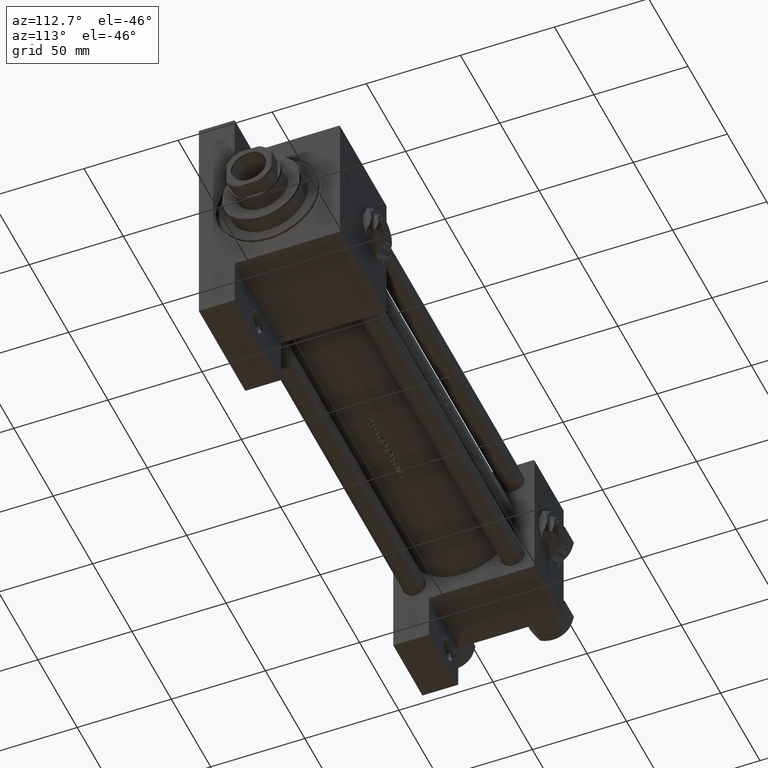
[diagram: clean part render]
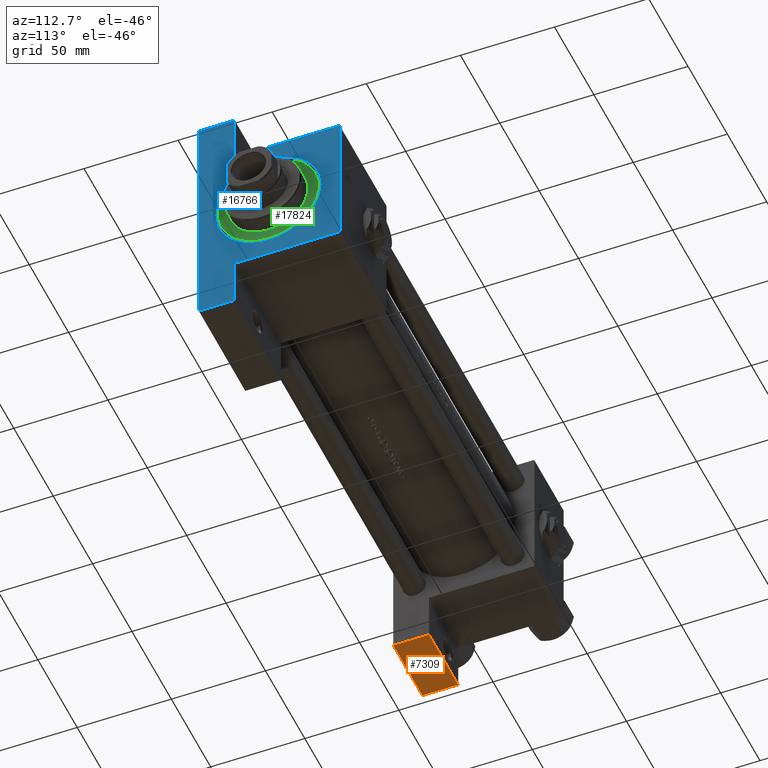
[diagram: same view with three faces highlighted in distinct colors, each labeled with its STEP entity id]
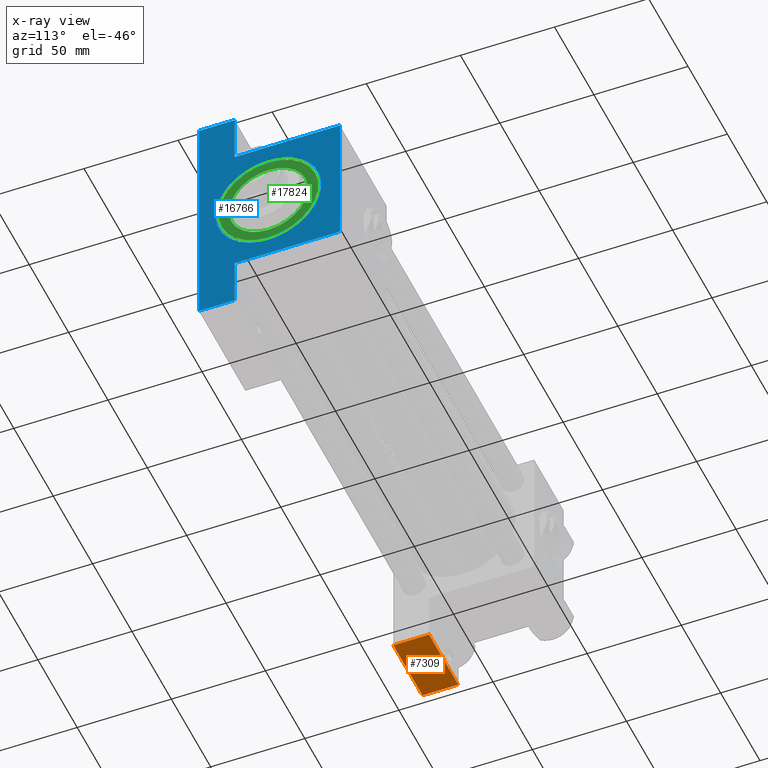
[diagram: x-ray of the same camera — body ghosted, the three highlighted faces saturated]
A machine part, auxiliary view with three faces highlighted in distinct colors.
The next image is the same camera in x-ray (body ghosted, the three faces saturated) — at least one of them is partly hidden behind the body in this view.
Their STEP definitions:

[orange] entity #7309 — the highlighted planar face has unit normal (0, -0, -1).
#1866 = VERTEX_POINT ( 'NONE', #25243 ) ;
#3209 = DIRECTION ( 'NONE',  ( 0.000000000000000000, -1.734723475976806848E-16, -1.000000000000000000 ) ) ;
#3335 = ORIENTED_EDGE ( 'NONE', *, *, #43545, .T. ) ;
#3960 = CARTESIAN_POINT ( 'NONE',  ( 1.595073532467135441E-14, 63.50000000000000000, -18.50000000000000355 ) ) ;
#4252 = CARTESIAN_POINT ( 'NONE',  ( 1.595073532467135441E-14, 63.50000000000000000, -37.50000000000002132 ) ) ;
#5351 = ORIENTED_EDGE ( 'NONE', *, *, #28706, .F. ) ;
#5475 = CARTESIAN_POINT ( 'NONE',  ( 37.00000000000001421, 63.50000000000001421, 26.72167621838005047 ) ) ;
#6617 = CARTESIAN_POINT ( 'NONE',  ( 1.595073532467135441E-14, 63.50000000000000000, -18.50000000000000355 ) ) ;
#7309 = ADVANCED_FACE ( 'NONE', ( #17788 ), #44562, .T. ) ;
#8362 = ORIENTED_EDGE ( 'NONE', *, *, #14600, .F. ) ;
#9433 = DIRECTION ( 'NONE',  ( 1.000000000000000000, 0.000000000000000000, 0.000000000000000000 ) ) ;
#10912 = VECTOR ( 'NONE', #42239, 1000.000000000000000 ) ;
#13402 = CARTESIAN_POINT ( 'NONE',  ( 1.595073532467135441E-14, 63.50000000000000000, -37.50000000000002132 ) ) ;
#13833 = DIRECTION ( 'NONE',  ( 0.000000000000000000, 1.000000000000000000, -1.734723475976806848E-16 ) ) ;
#14318 = CARTESIAN_POINT ( 'NONE',  ( 1.595073532467135441E-14, 63.50000000000001421, 26.72167621838005047 ) ) ;
#14600 = EDGE_CURVE ( 'NONE', #25459, #35148, #31992, .T. ) ;
#15932 = VECTOR ( 'NONE', #9433, 1000.000000000000000 ) ;
#16339 = EDGE_CURVE ( 'NONE', #1866, #32458, #29410, .T. ) ;
#17113 = LINE ( 'NONE', #5475, #10912 ) ;
#17788 = FACE_OUTER_BOUND ( 'NONE', #30743, .T. ) ;
#21273 = CARTESIAN_POINT ( 'NONE',  ( 37.00000000000001421, 63.50000000000000000, -37.50000000000002132 ) ) ;
#25243 = CARTESIAN_POINT ( 'NONE',  ( 37.00000000000001421, 63.50000000000000000, -18.50000000000000355 ) ) ;
#25458 = ORIENTED_EDGE ( 'NONE', *, *, #16339, .F. ) ;
#25459 = VERTEX_POINT ( 'NONE', #4252 ) ;
#28706 = EDGE_CURVE ( 'NONE', #32458, #25459, #36911, .T. ) ;
#29410 = LINE ( 'NONE', #6617, #42909 ) ;
#30743 = EDGE_LOOP ( 'NONE', ( #25458, #3335, #8362, #5351 ) ) ;
#31992 = LINE ( 'NONE', #13402, #15932 ) ;
#32421 = DIRECTION ( 'NONE',  ( 0.000000000000000000, 1.734723475976806848E-16, 1.000000000000000000 ) ) ;
#32458 = VERTEX_POINT ( 'NONE', #3960 ) ;
#35148 = VERTEX_POINT ( 'NONE', #21273 ) ;
#36911 = LINE ( 'NONE', #48324, #48536 ) ;
#41913 = AXIS2_PLACEMENT_3D ( 'NONE', #14318, #13833, #32421 ) ;
#42239 = DIRECTION ( 'NONE',  ( 0.000000000000000000, -1.734723475976806848E-16, -1.000000000000000000 ) ) ;
#42909 = VECTOR ( 'NONE', #47275, 1000.000000000000000 ) ;
#43545 = EDGE_CURVE ( 'NONE', #1866, #35148, #17113, .T. ) ;
#44562 = PLANE ( 'NONE',  #41913 ) ;
#47275 = DIRECTION ( 'NONE',  ( -1.000000000000000000, 0.000000000000000000, 0.000000000000000000 ) ) ;
#48324 = CARTESIAN_POINT ( 'NONE',  ( 1.595073532467135441E-14, 63.50000000000001421, 26.72167621838005047 ) ) ;
#48536 = VECTOR ( 'NONE', #3209, 1000.000000000000000 ) ;

[blue] entity #16766 — the highlighted planar face has unit normal (-1, 0, 0).
#437 = DIRECTION ( 'NONE',  ( 0.000000000000000000, 0.000000000000000000, -1.000000000000000000 ) ) ;
#480 = DIRECTION ( 'NONE',  ( -0.000000000000000000, -1.000000000000000000, -0.000000000000000000 ) ) ;
#1009 = DIRECTION ( 'NONE',  ( -1.000000000000000000, -0.000000000000000000, 0.000000000000000000 ) ) ;
#2218 = VECTOR ( 'NONE', #37906, 1000.000000000000000 ) ;
#2377 = AXIS2_PLACEMENT_3D ( 'NONE', #40691, #29782, #11444 ) ;
#2472 = EDGE_LOOP ( 'NONE', ( #22826, #24529, #17838, #12857, #4849, #17784, #31611, #46804, #31070, #38376 ) ) ;
#2506 = DIRECTION ( 'NONE',  ( 0.000000000000000000, -1.000000000000000000, 0.000000000000000000 ) ) ;
#2511 = CARTESIAN_POINT ( 'NONE',  ( 284.0000000000000568, -63.50000000000002842, -18.50000000000000000 ) ) ;
#2639 = CARTESIAN_POINT ( 'NONE',  ( 284.0000000000000568, 37.50000000000000000, 37.49999999999999289 ) ) ;
#2974 = LINE ( 'NONE', #32723, #19233 ) ;
#3221 = VERTEX_POINT ( 'NONE', #24892 ) ;
#3422 = CARTESIAN_POINT ( 'NONE',  ( 284.0000000000000568, 3.429011037612595587E-15, 27.50000000000005329 ) ) ;
#3988 = FACE_OUTER_BOUND ( 'NONE', #2472, .T. ) ;
#4131 = AXIS2_PLACEMENT_3D ( 'NONE', #27257, #1009, #38426 ) ;
#4849 = ORIENTED_EDGE ( 'NONE', *, *, #43751, .T. ) ;
#5851 = DIRECTION ( 'NONE',  ( 0.000000000000000000, 0.000000000000000000, -1.000000000000000000 ) ) ;
#6338 = CIRCLE ( 'NONE', #2377, 28.00000000000005329 ) ;
#6590 = EDGE_CURVE ( 'NONE', #9313, #37213, #6338, .T. ) ;
#7234 = EDGE_CURVE ( 'NONE', #29200, #32416, #19066, .T. ) ;
#7732 = VECTOR ( 'NONE', #2506, 1000.000000000000000 ) ;
#8560 = EDGE_CURVE ( 'NONE', #46795, #27736, #39801, .T. ) ;
#8974 = EDGE_CURVE ( 'NONE', #20077, #14722, #20672, .T. ) ;
#9313 = VERTEX_POINT ( 'NONE', #3422 ) ;
#9671 = VERTEX_POINT ( 'NONE', #22679 ) ;
#10758 = LINE ( 'NONE', #25630, #14493 ) ;
#11444 = DIRECTION ( 'NONE',  ( 0.000000000000000000, 0.000000000000000000, 1.000000000000000000 ) ) ;
#11840 = CARTESIAN_POINT ( 'NONE',  ( 284.0000000000000568, -63.50000000000002842, -18.50000000000000000 ) ) ;
#12165 = FACE_BOUND ( 'NONE', #23489, .T. ) ;
#12857 = ORIENTED_EDGE ( 'NONE', *, *, #8974, .T. ) ;
#13324 = EDGE_CURVE ( 'NONE', #9671, #38784, #43997, .T. ) ;
#14493 = VECTOR ( 'NONE', #40500, 1000.000000000000114 ) ;
#14722 = VERTEX_POINT ( 'NONE', #15340 ) ;
#14723 = VERTEX_POINT ( 'NONE', #41618 ) ;
#15297 = CARTESIAN_POINT ( 'NONE',  ( 284.0000000000000568, 37.50000000000000000, -37.50000000000000000 ) ) ;
#15340 = CARTESIAN_POINT ( 'NONE',  ( 284.0000000000000568, -37.50000000000000000, 36.99999999999995026 ) ) ;
#16766 = ADVANCED_FACE ( 'NONE', ( #12165, #3988 ), #42390, .F. ) ;
#17784 = ORIENTED_EDGE ( 'NONE', *, *, #7234, .T. ) ;
#17838 = ORIENTED_EDGE ( 'NONE', *, *, #18908, .T. ) ;
#18908 = EDGE_CURVE ( 'NONE', #14723, #20077, #2974, .T. ) ;
#19066 = LINE ( 'NONE', #34191, #34029 ) ;
#19233 = VECTOR ( 'NONE', #48807, 1000.000000000000000 ) ;
#19798 = VECTOR ( 'NONE', #5851, 1000.000000000000000 ) ;
#19947 = CARTESIAN_POINT ( 'NONE',  ( 284.0000000000000568, 0.000000000000000000, -28.50000000000005329 ) ) ;
#20077 = VERTEX_POINT ( 'NONE', #34854 ) ;
#20104 = EDGE_CURVE ( 'NONE', #37213, #9313, #35857, .T. ) ;
#20672 = LINE ( 'NONE', #32067, #45956 ) ;
#20828 = AXIS2_PLACEMENT_3D ( 'NONE', #37841, #33886, #34607 ) ;
#22679 = CARTESIAN_POINT ( 'NONE',  ( 284.0000000000000568, 63.49999999999997158, -18.50000000000000000 ) ) ;
#22786 = CARTESIAN_POINT ( 'NONE',  ( 284.0000000000000568, -37.50000000000000000, 37.49999999999997868 ) ) ;
#22826 = ORIENTED_EDGE ( 'NONE', *, *, #8560, .F. ) ;
#23489 = EDGE_LOOP ( 'NONE', ( #26970, #39774 ) ) ;
#23708 = DIRECTION ( 'NONE',  ( 0.000000000000000000, -1.000000000000000000, 0.000000000000000000 ) ) ;
#24529 = ORIENTED_EDGE ( 'NONE', *, *, #29279, .T. ) ;
#24892 = CARTESIAN_POINT ( 'NONE',  ( 284.0000000000000568, -63.50000000000002842, -37.50000000000000000 ) ) ;
#25521 = CARTESIAN_POINT ( 'NONE',  ( 284.0000000000000568, 63.49999999999997158, -37.50000000000000000 ) ) ;
#25630 = CARTESIAN_POINT ( 'NONE',  ( 284.0000000000000568, 36.99999999999994316, 37.49999999999999289 ) ) ;
#26970 = ORIENTED_EDGE ( 'NONE', *, *, #20104, .T. ) ;
#27257 = CARTESIAN_POINT ( 'NONE',  ( 284.0000000000000568, 0.000000000000000000, 0.000000000000000000 ) ) ;
#27736 = VERTEX_POINT ( 'NONE', #31479 ) ;
#29200 = VERTEX_POINT ( 'NONE', #37250 ) ;
#29279 = EDGE_CURVE ( 'NONE', #46795, #14723, #10758, .T. ) ;
#29782 = DIRECTION ( 'NONE',  ( -1.000000000000000000, -0.000000000000000000, 0.000000000000000000 ) ) ;
#30228 = LINE ( 'NONE', #22786, #2218 ) ;
#31070 = ORIENTED_EDGE ( 'NONE', *, *, #13324, .F. ) ;
#31479 = CARTESIAN_POINT ( 'NONE',  ( 284.0000000000000568, 37.49999999999995026, -18.50000000000000000 ) ) ;
#31611 = ORIENTED_EDGE ( 'NONE', *, *, #48080, .T. ) ;
#32067 = CARTESIAN_POINT ( 'NONE',  ( 284.0000000000000568, -37.50000000000000000, 36.99999999999995026 ) ) ;
#32416 = VERTEX_POINT ( 'NONE', #2511 ) ;
#32459 = VECTOR ( 'NONE', #23708, 1000.000000000000000 ) ;
#32723 = CARTESIAN_POINT ( 'NONE',  ( 284.0000000000000568, 37.50000000000000000, 37.49999999999999289 ) ) ;
#33571 = DIRECTION ( 'NONE',  ( 0.000000000000000000, 0.000000000000000000, -1.000000000000000000 ) ) ;
#33886 = DIRECTION ( 'NONE',  ( -1.000000000000000000, -0.000000000000000000, 0.000000000000000000 ) ) ;
#34029 = VECTOR ( 'NONE', #480, 1000.000000000000000 ) ;
#34191 = CARTESIAN_POINT ( 'NONE',  ( 284.0000000000000568, -63.50000000000002842, -18.50000000000000000 ) ) ;
#34607 = DIRECTION ( 'NONE',  ( 0.000000000000000000, 0.000000000000000000, 1.000000000000000000 ) ) ;
#34854 = CARTESIAN_POINT ( 'NONE',  ( 284.0000000000000568, -36.99999999999997158, 37.49999999999997868 ) ) ;
#35857 = CIRCLE ( 'NONE', #20828, 28.00000000000005329 ) ;
#36028 = DIRECTION ( 'NONE',  ( -0.000000000000000000, -0.7071067811865474617, -0.7071067811865474617 ) ) ;
#36446 = CARTESIAN_POINT ( 'NONE',  ( 284.0000000000000568, 63.49999999999997158, -18.50000000000000000 ) ) ;
#37213 = VERTEX_POINT ( 'NONE', #19947 ) ;
#37250 = CARTESIAN_POINT ( 'NONE',  ( 284.0000000000000568, -37.50000000000000711, -18.50000000000000355 ) ) ;
#37841 = CARTESIAN_POINT ( 'NONE',  ( 284.0000000000000568, 0.000000000000000000, -0.5000000000000004441 ) ) ;
#37906 = DIRECTION ( 'NONE',  ( 0.000000000000000000, -9.251858538542972814E-17, -1.000000000000000000 ) ) ;
#38376 = ORIENTED_EDGE ( 'NONE', *, *, #43654, .T. ) ;
#38426 = DIRECTION ( 'NONE',  ( 0.000000000000000000, 0.000000000000000000, 1.000000000000000000 ) ) ;
#38588 = LINE ( 'NONE', #11840, #45902 ) ;
#38784 = VERTEX_POINT ( 'NONE', #25521 ) ;
#39774 = ORIENTED_EDGE ( 'NONE', *, *, #6590, .T. ) ;
#39801 = LINE ( 'NONE', #2639, #19798 ) ;
#40500 = DIRECTION ( 'NONE',  ( 0.000000000000000000, -0.7071067811865474617, 0.7071067811865474617 ) ) ;
#40648 = LINE ( 'NONE', #36446, #7732 ) ;
#40691 = CARTESIAN_POINT ( 'NONE',  ( 284.0000000000000568, 0.000000000000000000, -0.5000000000000004441 ) ) ;
#41618 = CARTESIAN_POINT ( 'NONE',  ( 284.0000000000000568, 36.99999999999994316, 37.49999999999999289 ) ) ;
#42390 = PLANE ( 'NONE',  #4131 ) ;
#42557 = LINE ( 'NONE', #15297, #32459 ) ;
#43654 = EDGE_CURVE ( 'NONE', #9671, #27736, #40648, .T. ) ;
#43751 = EDGE_CURVE ( 'NONE', #14722, #29200, #30228, .T. ) ;
#43997 = LINE ( 'NONE', #48450, #46739 ) ;
#45902 = VECTOR ( 'NONE', #437, 1000.000000000000000 ) ;
#45956 = VECTOR ( 'NONE', #36028, 1000.000000000000114 ) ;
#46634 = CARTESIAN_POINT ( 'NONE',  ( 284.0000000000000568, 37.50000000000000000, 36.99999999999993605 ) ) ;
#46739 = VECTOR ( 'NONE', #33571, 1000.000000000000000 ) ;
#46795 = VERTEX_POINT ( 'NONE', #46634 ) ;
#46804 = ORIENTED_EDGE ( 'NONE', *, *, #48145, .F. ) ;
#48080 = EDGE_CURVE ( 'NONE', #32416, #3221, #38588, .T. ) ;
#48145 = EDGE_CURVE ( 'NONE', #38784, #3221, #42557, .T. ) ;
#48450 = CARTESIAN_POINT ( 'NONE',  ( 284.0000000000000568, 63.49999999999997158, -18.50000000000000000 ) ) ;
#48807 = DIRECTION ( 'NONE',  ( 0.000000000000000000, -1.000000000000000000, -1.850371707708594316E-16 ) ) ;

[green] entity #17824 — the highlighted planar face has unit normal (1, 0, 0).
#2008 = DIRECTION ( 'NONE',  ( 0.000000000000000000, 0.000000000000000000, 1.000000000000000000 ) ) ;
#2418 = CARTESIAN_POINT ( 'NONE',  ( -26.50000000000000355, 0.000000000000000000, 28.69999999999999929 ) ) ;
#2446 = DIRECTION ( 'NONE',  ( 1.000000000000000000, 0.000000000000000000, 0.000000000000000000 ) ) ;
#7247 = AXIS2_PLACEMENT_3D ( 'NONE', #16873, #2008, #46872 ) ;
#8627 = DIRECTION ( 'NONE',  ( 0.000000000000000000, 0.000000000000000000, 1.000000000000000000 ) ) ;
#8946 = CARTESIAN_POINT ( 'NONE',  ( -21.00000000000000000, 0.000000000000000000, 28.69999999999999929 ) ) ;
#10083 = ORIENTED_EDGE ( 'NONE', *, *, #14579, .F. ) ;
#11571 = VERTEX_POINT ( 'NONE', #2418 ) ;
#13581 = EDGE_LOOP ( 'NONE', ( #10083, #33190 ) ) ;
#13998 = VERTEX_POINT ( 'NONE', #41374 ) ;
#14336 = DIRECTION ( 'NONE',  ( 1.000000000000000000, 0.000000000000000000, 0.000000000000000000 ) ) ;
#14410 = DIRECTION ( 'NONE',  ( 0.000000000000000000, 0.000000000000000000, 1.000000000000000000 ) ) ;
#14579 = EDGE_CURVE ( 'NONE', #31756, #21903, #30200, .T. ) ;
#15643 = CIRCLE ( 'NONE', #19609, 26.50000000000000355 ) ;
#16873 = CARTESIAN_POINT ( 'NONE',  ( 0.000000000000000000, 0.000000000000000000, 28.69999999999999929 ) ) ;
#17552 = CARTESIAN_POINT ( 'NONE',  ( 0.000000000000000000, 0.000000000000000000, 28.69999999999999929 ) ) ;
#17824 = ADVANCED_FACE ( 'NONE', ( #29533, #32766 ), #29771, .T. ) ;
#18612 = DIRECTION ( 'NONE',  ( 1.000000000000000000, 0.000000000000000000, -0.000000000000000000 ) ) ;
#19029 = EDGE_CURVE ( 'NONE', #21903, #31756, #48502, .T. ) ;
#19609 = AXIS2_PLACEMENT_3D ( 'NONE', #17552, #21272, #2446 ) ;
#20715 = EDGE_LOOP ( 'NONE', ( #45986, #47573 ) ) ;
#21272 = DIRECTION ( 'NONE',  ( 0.000000000000000000, 0.000000000000000000, 1.000000000000000000 ) ) ;
#21286 = DIRECTION ( 'NONE',  ( 0.000000000000000000, 0.000000000000000000, 1.000000000000000000 ) ) ;
#21903 = VERTEX_POINT ( 'NONE', #46638 ) ;
#27107 = AXIS2_PLACEMENT_3D ( 'NONE', #27450, #8627, #45823 ) ;
#27450 = CARTESIAN_POINT ( 'NONE',  ( 0.000000000000000000, 0.000000000000000000, 28.69999999999999929 ) ) ;
#29533 = FACE_BOUND ( 'NONE', #13581, .T. ) ;
#29771 = PLANE ( 'NONE',  #47688 ) ;
#30200 = CIRCLE ( 'NONE', #7247, 21.00000000000000000 ) ;
#31262 = AXIS2_PLACEMENT_3D ( 'NONE', #40110, #21286, #14336 ) ;
#31756 = VERTEX_POINT ( 'NONE', #8946 ) ;
#32766 = FACE_OUTER_BOUND ( 'NONE', #20715, .T. ) ;
#33190 = ORIENTED_EDGE ( 'NONE', *, *, #19029, .F. ) ;
#33474 = EDGE_CURVE ( 'NONE', #11571, #13998, #39961, .T. ) ;
#39961 = CIRCLE ( 'NONE', #31262, 26.50000000000000355 ) ;
#40110 = CARTESIAN_POINT ( 'NONE',  ( 0.000000000000000000, 0.000000000000000000, 28.69999999999999929 ) ) ;
#41374 = CARTESIAN_POINT ( 'NONE',  ( 26.50000000000000355, 3.245314017740486554E-15, 28.69999999999999929 ) ) ;
#43386 = EDGE_CURVE ( 'NONE', #13998, #11571, #15643, .T. ) ;
#44890 = CARTESIAN_POINT ( 'NONE',  ( 0.000000000000000000, 0.000000000000000000, 28.69999999999999929 ) ) ;
#45823 = DIRECTION ( 'NONE',  ( 1.000000000000000000, 0.000000000000000000, 0.000000000000000000 ) ) ;
#45986 = ORIENTED_EDGE ( 'NONE', *, *, #33474, .T. ) ;
#46638 = CARTESIAN_POINT ( 'NONE',  ( 21.00000000000000000, 2.571758278209441661E-15, 28.69999999999999929 ) ) ;
#46872 = DIRECTION ( 'NONE',  ( 1.000000000000000000, 0.000000000000000000, 0.000000000000000000 ) ) ;
#47573 = ORIENTED_EDGE ( 'NONE', *, *, #43386, .T. ) ;
#47688 = AXIS2_PLACEMENT_3D ( 'NONE', #44890, #14410, #18612 ) ;
#48502 = CIRCLE ( 'NONE', #27107, 21.00000000000000000 ) ;